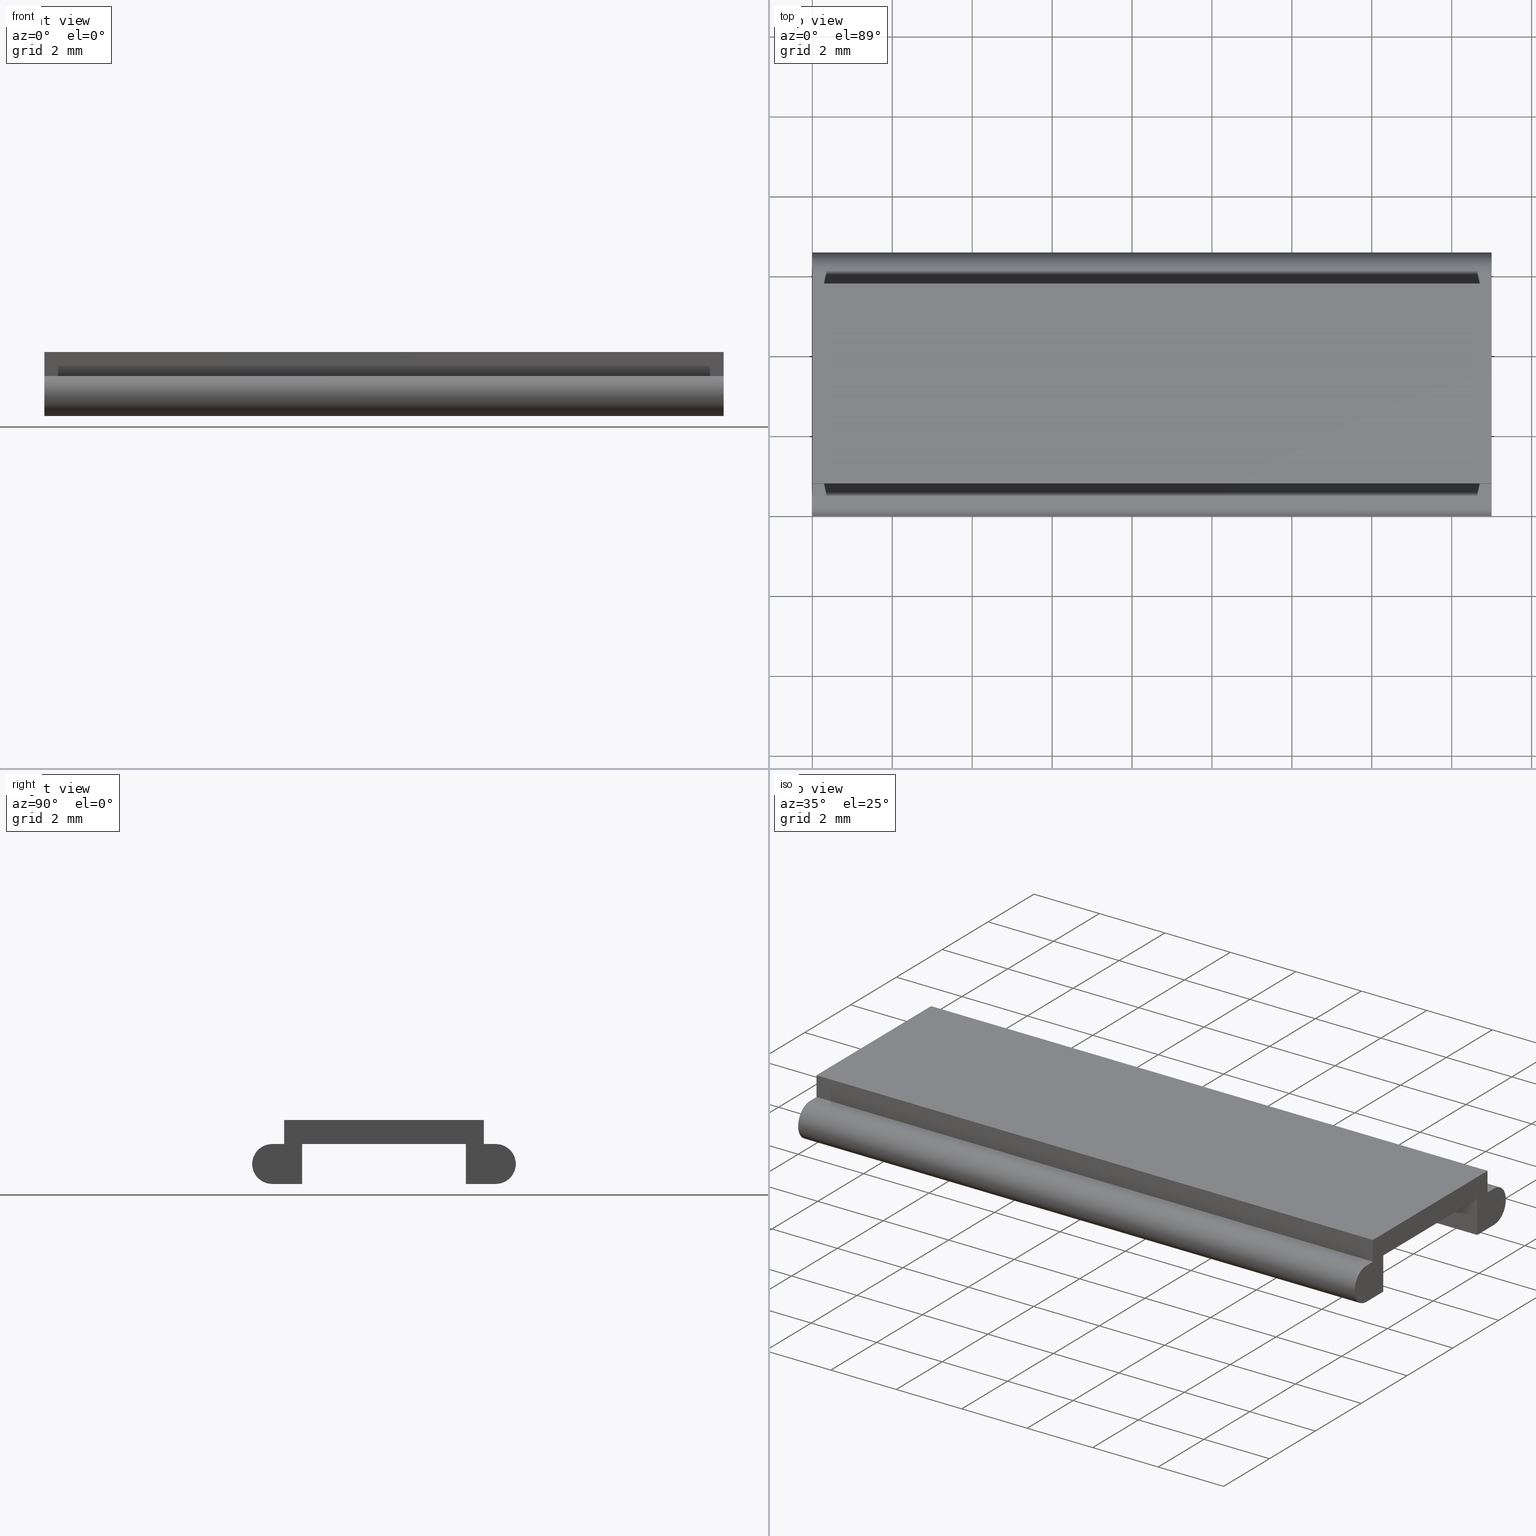
[diagram: canonical four-view strip — front | top / right | iso, engineering-drawing reading convention]
A machine part, canonical four-view strip (front | top / right | iso — engineering-drawing reading convention). The complete STEP part file that produces these views, byte-faithful:
ISO-10303-21;
HEADER;
FILE_DESCRIPTION(('Creo Elements/Direct Modeling STEP Export'),'2;1');
FILE_NAME(
'C:/temp/JobSpoolerServerData/JobServer Files/c83dc3cd-a908-47fd-89f6-1c
d98eb75ae3/work/output/model.stp','2019-04-17T16:14:06',(''),(''),
'Creo Elements/Direct Modeling STEP processor for AP214 (Solid Model)',
'Creo Elements/Direct Modeling 20.1A  29-Sep-2018 (C) Parametric Technol
ogy GmbH','');
FILE_SCHEMA(('AUTOMOTIVE_DESIGN { 1 0 10303 214 1 1 1 1 }'));
ENDSEC;
DATA;
#10=CARTESIAN_POINT('',(381.426447634406,993.884349945384,
0.0999999999999872));
#20=DIRECTION('',(-0.,6.12323399573677E-17,1.));
#30=DIRECTION('',(1.,0.,0.));
#40=AXIS2_PLACEMENT_3D('',#10,#20,#30);
#50=PLANE('',#40);
#60=CARTESIAN_POINT('',(398.426447634406,0.,0.100000000000048));
#70=DIRECTION('',(0.,1.,-6.12323399573677E-17));
#80=VECTOR('',#70,1.);
#90=LINE('',#60,#80);
#100=CARTESIAN_POINT('',(398.426447634406,987.424347545384,
0.0999999999999876));
#110=VERTEX_POINT('',#100);
#120=CARTESIAN_POINT('',(398.426447634406,992.424347545384,
0.0999999999999873));
#130=VERTEX_POINT('',#120);
#140=EDGE_CURVE('',#110,#130,#90,.T.);
#150=ORIENTED_EDGE('',*,*,#140,.T.);
#160=CARTESIAN_POINT('',(0.,987.424347545384,0.0999999999999876));
#170=DIRECTION('',(-1.,0.,0.));
#180=VECTOR('',#170,1.);
#190=LINE('',#160,#180);
#200=CARTESIAN_POINT('',(381.426447634406,987.424347545384,
0.0999999999999876));
#210=VERTEX_POINT('',#200);
#220=EDGE_CURVE('',#110,#210,#190,.T.);
#230=ORIENTED_EDGE('',*,*,#220,.F.);
#240=CARTESIAN_POINT('',(381.426447634406,0.,0.100000000000048));
#250=DIRECTION('',(0.,-1.,6.12323399573677E-17));
#260=VECTOR('',#250,1.);
#270=LINE('',#240,#260);
#280=CARTESIAN_POINT('',(381.426447634406,992.424347545384,
0.0999999999999873));
#290=VERTEX_POINT('',#280);
#300=EDGE_CURVE('',#290,#210,#270,.T.);
#310=ORIENTED_EDGE('',*,*,#300,.T.);
#320=CARTESIAN_POINT('',(0.,992.424347545384,0.0999999999999873));
#330=DIRECTION('',(1.,0.,0.));
#340=VECTOR('',#330,1.);
#350=LINE('',#320,#340);
#360=EDGE_CURVE('',#290,#130,#350,.T.);
#370=ORIENTED_EDGE('',*,*,#360,.F.);
#380=EDGE_LOOP('',(#370,#310,#230,#150));
#390=FACE_OUTER_BOUND('',#380,.T.);
#400=ADVANCED_FACE('',(#390),#50,.T.);
#410=COLOUR_RGB('',0.980392217636108,1.,1.);
#420=FILL_AREA_STYLE_COLOUR('',#410);
#430=FILL_AREA_STYLE('',(#420));
#440=SURFACE_STYLE_FILL_AREA(#430);
#450=SURFACE_SIDE_STYLE('',(#440));
#460=SURFACE_STYLE_USAGE(.BOTH.,#450);
#470=PRESENTATION_STYLE_ASSIGNMENT((#460));
#480=CARTESIAN_POINT('',(381.426447634406,987.424347545384,
-0.300000000000022));
#490=DIRECTION('',(0.,-1.,0.));
#500=DIRECTION('',(0.,0.,1.));
#510=AXIS2_PLACEMENT_3D('',#480,#490,#500);
#520=PLANE('',#510);
#530=CARTESIAN_POINT('',(381.426447634406,987.424347545384,0.));
#540=DIRECTION('',(0.,0.,-1.));
#550=VECTOR('',#540,1.);
#560=LINE('',#530,#550);
#570=CARTESIAN_POINT('',(381.426447634406,987.424347545384,
-0.500000000000021));
#580=VERTEX_POINT('',#570);
#590=EDGE_CURVE('',#210,#580,#560,.T.);
#600=ORIENTED_EDGE('',*,*,#590,.T.);
#610=ORIENTED_EDGE('',*,*,#220,.T.);
#620=CARTESIAN_POINT('',(398.426447634406,987.424347545384,0.));
#630=DIRECTION('',(0.,0.,1.));
#640=VECTOR('',#630,1.);
#650=LINE('',#620,#640);
#660=CARTESIAN_POINT('',(398.426447634406,987.424347545384,
-0.500000000000021));
#670=VERTEX_POINT('',#660);
#680=EDGE_CURVE('',#670,#110,#650,.T.);
#690=ORIENTED_EDGE('',*,*,#680,.T.);
#700=CARTESIAN_POINT('',(0.,987.424347545384,-0.500000000000021));
#710=DIRECTION('',(-1.,0.,0.));
#720=VECTOR('',#710,1.);
#730=LINE('',#700,#720);
#740=EDGE_CURVE('',#670,#580,#730,.T.);
#750=ORIENTED_EDGE('',*,*,#740,.F.);
#760=EDGE_LOOP('',(#750,#690,#610,#600));
#770=FACE_OUTER_BOUND('',#760,.T.);
#780=ADVANCED_FACE('',(#770),#520,.T.);
#790=COLOUR_RGB('',0.980392217636108,1.,1.);
#800=FILL_AREA_STYLE_COLOUR('',#790);
#810=FILL_AREA_STYLE('',(#800));
#820=SURFACE_STYLE_FILL_AREA(#810);
#830=SURFACE_SIDE_STYLE('',(#820));
#840=SURFACE_STYLE_USAGE(.BOTH.,#830);
#850=PRESENTATION_STYLE_ASSIGNMENT((#840));
#860=CARTESIAN_POINT('',(398.426447634406,993.884349945384,
-1.50000000000001));
#870=DIRECTION('',(-0.,-6.12323399573677E-17,-1.));
#880=DIRECTION('',(-1.,0.,0.));
#890=AXIS2_PLACEMENT_3D('',#860,#870,#880);
#900=PLANE('',#890);
#910=CARTESIAN_POINT('',(0.,991.974347545384,-1.50000000000001));
#920=DIRECTION('',(-1.,0.,0.));
#930=VECTOR('',#920,1.);
#940=LINE('',#910,#930);
#950=CARTESIAN_POINT('',(398.426447634406,991.974347545384,
-1.50000000000001));
#960=VERTEX_POINT('',#950);
#970=CARTESIAN_POINT('',(381.426447634406,991.974347545384,
-1.50000000000001));
#980=VERTEX_POINT('',#970);
#990=EDGE_CURVE('',#960,#980,#940,.T.);
#1000=ORIENTED_EDGE('',*,*,#990,.T.);
#1010=CARTESIAN_POINT('',(398.426447634406,0.,-1.49999999999995));
#1020=DIRECTION('',(0.,-1.,6.12323399573677E-17));
#1030=VECTOR('',#1020,1.);
#1040=LINE('',#1010,#1030);
#1050=CARTESIAN_POINT('',(398.426447634406,992.724347545384,
-1.50000000000001));
#1060=VERTEX_POINT('',#1050);
#1070=EDGE_CURVE('',#1060,#960,#1040,.T.);
#1080=ORIENTED_EDGE('',*,*,#1070,.T.);
#1090=CARTESIAN_POINT('',(381.426447634406,992.724347545384,
-1.50000000000002));
#1100=DIRECTION('',(1.,0.,0.));
#1110=VECTOR('',#1100,1.);
#1120=LINE('',#1090,#1110);
#1130=CARTESIAN_POINT('',(381.426447634406,992.724347545384,
-1.50000000000001));
#1140=VERTEX_POINT('',#1130);
#1150=EDGE_CURVE('',#1140,#1060,#1120,.T.);
#1160=ORIENTED_EDGE('',*,*,#1150,.T.);
#1170=CARTESIAN_POINT('',(381.426447634406,0.,-1.49999999999995));
#1180=DIRECTION('',(0.,1.,-6.12323399573677E-17));
#1190=VECTOR('',#1180,1.);
#1200=LINE('',#1170,#1190);
#1210=EDGE_CURVE('',#980,#1140,#1200,.T.);
#1220=ORIENTED_EDGE('',*,*,#1210,.T.);
#1230=EDGE_LOOP('',(#1220,#1160,#1080,#1000));
#1240=FACE_OUTER_BOUND('',#1230,.T.);
#1250=ADVANCED_FACE('',(#1240),#900,.T.);
#1260=COLOUR_RGB('',0.980392217636108,1.,1.);
#1270=FILL_AREA_STYLE_COLOUR('',#1260);
#1280=FILL_AREA_STYLE('',(#1270));
#1290=SURFACE_STYLE_FILL_AREA(#1280);
#1300=SURFACE_SIDE_STYLE('',(#1290));
#1310=SURFACE_STYLE_USAGE(.BOTH.,#1300);
#1320=PRESENTATION_STYLE_ASSIGNMENT((#1310));
#1330=CARTESIAN_POINT('',(381.426447634406,992.624347545384,
-0.500000000000021));
#1340=DIRECTION('',(0.,-0.,1.));
#1350=DIRECTION('',(0.,1.,0.));
#1360=AXIS2_PLACEMENT_3D('',#1330,#1340,#1350);
#1370=PLANE('',#1360);
#1380=CARTESIAN_POINT('',(381.426447634406,0.,-0.500000000000021));
#1390=DIRECTION('',(0.,-1.,0.));
#1400=VECTOR('',#1390,1.);
#1410=LINE('',#1380,#1400);
#1420=CARTESIAN_POINT('',(381.426447634406,992.724347545384,
-0.500000000000021));
#1430=VERTEX_POINT('',#1420);
#1440=CARTESIAN_POINT('',(381.426447634406,992.424347545384,
-0.500000000000021));
#1450=VERTEX_POINT('',#1440);
#1460=EDGE_CURVE('',#1430,#1450,#1410,.T.);
#1470=ORIENTED_EDGE('',*,*,#1460,.T.);
#1480=CARTESIAN_POINT('',(381.426447634406,992.724347545384,
-0.500000000000021));
#1490=DIRECTION('',(1.,0.,0.));
#1500=VECTOR('',#1490,1.);
#1510=LINE('',#1480,#1500);
#1520=CARTESIAN_POINT('',(398.426447634406,992.724347545384,
-0.500000000000021));
#1530=VERTEX_POINT('',#1520);
#1540=EDGE_CURVE('',#1430,#1530,#1510,.T.);
#1550=ORIENTED_EDGE('',*,*,#1540,.F.);
#1560=CARTESIAN_POINT('',(398.426447634406,0.,-0.500000000000021));
#1570=DIRECTION('',(0.,1.,0.));
#1580=VECTOR('',#1570,1.);
#1590=LINE('',#1560,#1580);
#1600=CARTESIAN_POINT('',(398.426447634406,992.424347545384,
-0.500000000000021));
#1610=VERTEX_POINT('',#1600);
#1620=EDGE_CURVE('',#1610,#1530,#1590,.T.);
#1630=ORIENTED_EDGE('',*,*,#1620,.T.);
#1640=CARTESIAN_POINT('',(0.,992.424347545384,-0.500000000000021));
#1650=DIRECTION('',(-1.,0.,0.));
#1660=VECTOR('',#1650,1.);
#1670=LINE('',#1640,#1660);
#1680=EDGE_CURVE('',#1610,#1450,#1670,.T.);
#1690=ORIENTED_EDGE('',*,*,#1680,.F.);
#1700=EDGE_LOOP('',(#1690,#1630,#1550,#1470));
#1710=FACE_OUTER_BOUND('',#1700,.T.);
#1720=ADVANCED_FACE('',(#1710),#1370,.T.);
#1730=COLOUR_RGB('',0.980392217636108,1.,1.);
#1740=FILL_AREA_STYLE_COLOUR('',#1730);
#1750=FILL_AREA_STYLE('',(#1740));
#1760=SURFACE_STYLE_FILL_AREA(#1750);
#1770=SURFACE_SIDE_STYLE('',(#1760));
#1780=SURFACE_STYLE_USAGE(.BOTH.,#1770);
#1790=PRESENTATION_STYLE_ASSIGNMENT((#1780));
#1800=CARTESIAN_POINT('',(381.426447634406,991.974347545384,
-1.00000000000002));
#1810=DIRECTION('',(0.,-1.,0.));
#1820=DIRECTION('',(0.,0.,1.));
#1830=AXIS2_PLACEMENT_3D('',#1800,#1810,#1820);
#1840=PLANE('',#1830);
#1850=CARTESIAN_POINT('',(381.426447634406,991.974347545384,0.));
#1860=DIRECTION('',(0.,0.,-1.));
#1870=VECTOR('',#1860,1.);
#1880=LINE('',#1850,#1870);
#1890=CARTESIAN_POINT('',(381.426447634406,991.974347545384,
-0.500000000000021));
#1900=VERTEX_POINT('',#1890);
#1910=EDGE_CURVE('',#1900,#980,#1880,.T.);
#1920=ORIENTED_EDGE('',*,*,#1910,.T.);
#1930=CARTESIAN_POINT('',(0.,991.974347545384,-0.500000000000021));
#1940=DIRECTION('',(-1.,0.,0.));
#1950=VECTOR('',#1940,1.);
#1960=LINE('',#1930,#1950);
#1970=CARTESIAN_POINT('',(398.426447634406,991.974347545384,
-0.500000000000021));
#1980=VERTEX_POINT('',#1970);
#1990=EDGE_CURVE('',#1980,#1900,#1960,.T.);
#2000=ORIENTED_EDGE('',*,*,#1990,.T.);
#2010=CARTESIAN_POINT('',(398.426447634406,991.974347545384,0.));
#2020=DIRECTION('',(0.,0.,1.));
#2030=VECTOR('',#2020,1.);
#2040=LINE('',#2010,#2030);
#2050=EDGE_CURVE('',#960,#1980,#2040,.T.);
#2060=ORIENTED_EDGE('',*,*,#2050,.T.);
#2070=ORIENTED_EDGE('',*,*,#990,.F.);
#2080=EDGE_LOOP('',(#2070,#2060,#2000,#1920));
#2090=FACE_OUTER_BOUND('',#2080,.T.);
#2100=ADVANCED_FACE('',(#2090),#1840,.T.);
#2110=COLOUR_RGB('',0.980392217636108,1.,1.);
#2120=FILL_AREA_STYLE_COLOUR('',#2110);
#2130=FILL_AREA_STYLE('',(#2120));
#2140=SURFACE_STYLE_FILL_AREA(#2130);
#2150=SURFACE_SIDE_STYLE('',(#2140));
#2160=SURFACE_STYLE_USAGE(.BOTH.,#2150);
#2170=PRESENTATION_STYLE_ASSIGNMENT((#2160));
#2180=CARTESIAN_POINT('',(398.426447634406,993.884349945384,
-1.12500000000001));
#2190=DIRECTION('',(1.,0.,0.));
#2200=DIRECTION('',(0.,-6.12323399573677E-17,-1.));
#2210=AXIS2_PLACEMENT_3D('',#2180,#2190,#2200);
#2220=PLANE('',#2210);
#2230=ORIENTED_EDGE('',*,*,#680,.F.);
#2240=ORIENTED_EDGE('',*,*,#140,.F.);
#2250=CARTESIAN_POINT('',(398.426447634406,992.424347545384,0.));
#2260=DIRECTION('',(0.,0.,-1.));
#2270=VECTOR('',#2260,1.);
#2280=LINE('',#2250,#2270);
#2290=EDGE_CURVE('',#130,#1610,#2280,.T.);
#2300=ORIENTED_EDGE('',*,*,#2290,.F.);
#2310=ORIENTED_EDGE('',*,*,#1620,.F.);
#2320=CARTESIAN_POINT('',(398.426447634406,992.724347545384,
-1.00000000000002));
#2330=DIRECTION('',(1.,0.,0.));
#2340=DIRECTION('',(0.,1.,0.));
#2350=AXIS2_PLACEMENT_3D('',#2320,#2330,#2340);
#2360=CIRCLE('',#2350,0.5);
#2370=EDGE_CURVE('',#1060,#1530,#2360,.T.);
#2380=ORIENTED_EDGE('',*,*,#2370,.T.);
#2390=ORIENTED_EDGE('',*,*,#1070,.F.);
#2400=ORIENTED_EDGE('',*,*,#2050,.F.);
#2410=CARTESIAN_POINT('',(398.426447634406,0.,-0.500000000000021));
#2420=DIRECTION('',(0.,-1.,0.));
#2430=VECTOR('',#2420,1.);
#2440=LINE('',#2410,#2430);
#2450=CARTESIAN_POINT('',(398.426447634406,987.874347545384,
-0.500000000000021));
#2460=VERTEX_POINT('',#2450);
#2470=EDGE_CURVE('',#1980,#2460,#2440,.T.);
#2480=ORIENTED_EDGE('',*,*,#2470,.F.);
#2490=CARTESIAN_POINT('',(398.426447634406,987.874347545384,0.));
#2500=DIRECTION('',(0.,0.,-1.));
#2510=VECTOR('',#2500,1.);
#2520=LINE('',#2490,#2510);
#2530=CARTESIAN_POINT('',(398.426447634406,987.874347545384,
-1.50000000000001));
#2540=VERTEX_POINT('',#2530);
#2550=EDGE_CURVE('',#2460,#2540,#2520,.T.);
#2560=ORIENTED_EDGE('',*,*,#2550,.F.);
#2570=CARTESIAN_POINT('',(398.426447634406,0.,-1.49999999999995));
#2580=DIRECTION('',(0.,-1.,6.12323399573677E-17));
#2590=VECTOR('',#2580,1.);
#2600=LINE('',#2570,#2590);
#2610=CARTESIAN_POINT('',(398.426447634406,987.124347545384,
-1.50000000000002));
#2620=VERTEX_POINT('',#2610);
#2630=EDGE_CURVE('',#2540,#2620,#2600,.T.);
#2640=ORIENTED_EDGE('',*,*,#2630,.F.);
#2650=CARTESIAN_POINT('',(398.426447634406,987.124347545384,
-1.00000000000002));
#2660=DIRECTION('',(1.,0.,0.));
#2670=DIRECTION('',(0.,1.,0.));
#2680=AXIS2_PLACEMENT_3D('',#2650,#2660,#2670);
#2690=CIRCLE('',#2680,0.5);
#2700=CARTESIAN_POINT('',(398.426447634406,987.124347545384,
-0.500000000000021));
#2710=VERTEX_POINT('',#2700);
#2720=EDGE_CURVE('',#2710,#2620,#2690,.T.);
#2730=ORIENTED_EDGE('',*,*,#2720,.T.);
#2740=CARTESIAN_POINT('',(398.426447634406,0.,-0.500000000000021));
#2750=DIRECTION('',(0.,1.,0.));
#2760=VECTOR('',#2750,1.);
#2770=LINE('',#2740,#2760);
#2780=EDGE_CURVE('',#2710,#670,#2770,.T.);
#2790=ORIENTED_EDGE('',*,*,#2780,.F.);
#2800=EDGE_LOOP('',(#2790,#2730,#2640,#2560,#2480,#2400,#2390,#2380,
#2310,#2300,#2240,#2230));
#2810=FACE_OUTER_BOUND('',#2800,.T.);
#2820=ADVANCED_FACE('',(#2810),#2220,.T.);
#2830=COLOUR_RGB('',0.980392217636108,1.,1.);
#2840=FILL_AREA_STYLE_COLOUR('',#2830);
#2850=FILL_AREA_STYLE('',(#2840));
#2860=SURFACE_STYLE_FILL_AREA(#2850);
#2870=SURFACE_SIDE_STYLE('',(#2860));
#2880=SURFACE_STYLE_USAGE(.BOTH.,#2870);
#2890=PRESENTATION_STYLE_ASSIGNMENT((#2880));
#2900=CARTESIAN_POINT('',(381.426447634406,991.674347545384,
-0.500000000000021));
#2910=DIRECTION('',(-0.,-0.,-1.));
#2920=DIRECTION('',(0.,-1.,0.));
#2930=AXIS2_PLACEMENT_3D('',#2900,#2910,#2920);
#2940=PLANE('',#2930);
#2950=CARTESIAN_POINT('',(0.,987.874347545384,-0.500000000000021));
#2960=DIRECTION('',(-1.,0.,0.));
#2970=VECTOR('',#2960,1.);
#2980=LINE('',#2950,#2970);
#2990=CARTESIAN_POINT('',(381.426447634406,987.874347545384,
-0.500000000000021));
#3000=VERTEX_POINT('',#2990);
#3010=EDGE_CURVE('',#2460,#3000,#2980,.T.);
#3020=ORIENTED_EDGE('',*,*,#3010,.T.);
#3030=ORIENTED_EDGE('',*,*,#2470,.T.);
#3040=ORIENTED_EDGE('',*,*,#1990,.F.);
#3050=CARTESIAN_POINT('',(381.426447634406,0.,-0.500000000000021));
#3060=DIRECTION('',(0.,1.,0.));
#3070=VECTOR('',#3060,1.);
#3080=LINE('',#3050,#3070);
#3090=EDGE_CURVE('',#3000,#1900,#3080,.T.);
#3100=ORIENTED_EDGE('',*,*,#3090,.T.);
#3110=EDGE_LOOP('',(#3100,#3040,#3030,#3020));
#3120=FACE_OUTER_BOUND('',#3110,.T.);
#3130=ADVANCED_FACE('',(#3120),#2940,.T.);
#3140=COLOUR_RGB('',0.980392217636108,1.,1.);
#3150=FILL_AREA_STYLE_COLOUR('',#3140);
#3160=FILL_AREA_STYLE('',(#3150));
#3170=SURFACE_STYLE_FILL_AREA(#3160);
#3180=SURFACE_SIDE_STYLE('',(#3170));
#3190=SURFACE_STYLE_USAGE(.BOTH.,#3180);
#3200=PRESENTATION_STYLE_ASSIGNMENT((#3190));
#3210=CARTESIAN_POINT('',(381.426447634406,993.884349945384,
-1.50000000000001));
#3220=DIRECTION('',(-1.,0.,0.));
#3230=DIRECTION('',(0.,6.12323399573677E-17,1.));
#3240=AXIS2_PLACEMENT_3D('',#3210,#3220,#3230);
#3250=PLANE('',#3240);
#3260=CARTESIAN_POINT('',(381.426447634406,0.,-0.500000000000021));
#3270=DIRECTION('',(0.,-1.,0.));
#3280=VECTOR('',#3270,1.);
#3290=LINE('',#3260,#3280);
#3300=CARTESIAN_POINT('',(381.426447634406,987.124347545384,
-0.500000000000021));
#3310=VERTEX_POINT('',#3300);
#3320=EDGE_CURVE('',#580,#3310,#3290,.T.);
#3330=ORIENTED_EDGE('',*,*,#3320,.F.);
#3340=CARTESIAN_POINT('',(381.426447634406,987.124347545384,
-1.00000000000002));
#3350=DIRECTION('',(1.,0.,0.));
#3360=DIRECTION('',(0.,1.,0.));
#3370=AXIS2_PLACEMENT_3D('',#3340,#3350,#3360);
#3380=CIRCLE('',#3370,0.5);
#3390=CARTESIAN_POINT('',(381.426447634406,987.124347545384,
-1.50000000000002));
#3400=VERTEX_POINT('',#3390);
#3410=EDGE_CURVE('',#3310,#3400,#3380,.T.);
#3420=ORIENTED_EDGE('',*,*,#3410,.F.);
#3430=CARTESIAN_POINT('',(381.426447634406,0.,-1.49999999999995));
#3440=DIRECTION('',(0.,1.,-6.12323399573677E-17));
#3450=VECTOR('',#3440,1.);
#3460=LINE('',#3430,#3450);
#3470=CARTESIAN_POINT('',(381.426447634406,987.874347545384,
-1.50000000000001));
#3480=VERTEX_POINT('',#3470);
#3490=EDGE_CURVE('',#3400,#3480,#3460,.T.);
#3500=ORIENTED_EDGE('',*,*,#3490,.F.);
#3510=CARTESIAN_POINT('',(381.426447634406,987.874347545384,0.));
#3520=DIRECTION('',(0.,0.,1.));
#3530=VECTOR('',#3520,1.);
#3540=LINE('',#3510,#3530);
#3550=EDGE_CURVE('',#3480,#3000,#3540,.T.);
#3560=ORIENTED_EDGE('',*,*,#3550,.F.);
#3570=ORIENTED_EDGE('',*,*,#3090,.F.);
#3580=ORIENTED_EDGE('',*,*,#1910,.F.);
#3590=ORIENTED_EDGE('',*,*,#1210,.F.);
#3600=CARTESIAN_POINT('',(381.426447634406,992.724347545384,
-1.00000000000002));
#3610=DIRECTION('',(1.,0.,0.));
#3620=DIRECTION('',(0.,1.,0.));
#3630=AXIS2_PLACEMENT_3D('',#3600,#3610,#3620);
#3640=CIRCLE('',#3630,0.5);
#3650=EDGE_CURVE('',#1140,#1430,#3640,.T.);
#3660=ORIENTED_EDGE('',*,*,#3650,.F.);
#3670=ORIENTED_EDGE('',*,*,#1460,.F.);
#3680=CARTESIAN_POINT('',(381.426447634406,992.424347545384,0.));
#3690=DIRECTION('',(0.,0.,1.));
#3700=VECTOR('',#3690,1.);
#3710=LINE('',#3680,#3700);
#3720=EDGE_CURVE('',#1450,#290,#3710,.T.);
#3730=ORIENTED_EDGE('',*,*,#3720,.F.);
#3740=ORIENTED_EDGE('',*,*,#300,.F.);
#3750=ORIENTED_EDGE('',*,*,#590,.F.);
#3760=EDGE_LOOP('',(#3750,#3740,#3730,#3670,#3660,#3590,#3580,#3570,
#3560,#3500,#3420,#3330));
#3770=FACE_OUTER_BOUND('',#3760,.T.);
#3780=ADVANCED_FACE('',(#3770),#3250,.T.);
#3790=COLOUR_RGB('',0.980392217636108,1.,1.);
#3800=FILL_AREA_STYLE_COLOUR('',#3790);
#3810=FILL_AREA_STYLE('',(#3800));
#3820=SURFACE_STYLE_FILL_AREA(#3810);
#3830=SURFACE_SIDE_STYLE('',(#3820));
#3840=SURFACE_STYLE_USAGE(.BOTH.,#3830);
#3850=PRESENTATION_STYLE_ASSIGNMENT((#3840));
#3860=CARTESIAN_POINT('',(381.426447634406,987.874347545384,
-0.800000000000022));
#3870=DIRECTION('',(0.,1.,0.));
#3880=DIRECTION('',(0.,0.,-1.));
#3890=AXIS2_PLACEMENT_3D('',#3860,#3870,#3880);
#3900=PLANE('',#3890);
#3910=ORIENTED_EDGE('',*,*,#3550,.T.);
#3920=CARTESIAN_POINT('',(0.,987.874347545384,-1.50000000000001));
#3930=DIRECTION('',(-1.,0.,0.));
#3940=VECTOR('',#3930,1.);
#3950=LINE('',#3920,#3940);
#3960=EDGE_CURVE('',#2540,#3480,#3950,.T.);
#3970=ORIENTED_EDGE('',*,*,#3960,.T.);
#3980=ORIENTED_EDGE('',*,*,#2550,.T.);
#3990=ORIENTED_EDGE('',*,*,#3010,.F.);
#4000=EDGE_LOOP('',(#3990,#3980,#3970,#3910));
#4010=FACE_OUTER_BOUND('',#4000,.T.);
#4020=ADVANCED_FACE('',(#4010),#3900,.T.);
#4030=COLOUR_RGB('',0.980392217636108,1.,1.);
#4040=FILL_AREA_STYLE_COLOUR('',#4030);
#4050=FILL_AREA_STYLE('',(#4040));
#4060=SURFACE_STYLE_FILL_AREA(#4050);
#4070=SURFACE_SIDE_STYLE('',(#4060));
#4080=SURFACE_STYLE_USAGE(.BOTH.,#4070);
#4090=PRESENTATION_STYLE_ASSIGNMENT((#4080));
#4100=CARTESIAN_POINT('',(475.426447634406,992.424347545384,
-1.66000240000002));
#4110=DIRECTION('',(-0.,1.,0.));
#4120=DIRECTION('',(1.,0.,0.));
#4130=AXIS2_PLACEMENT_3D('',#4100,#4110,#4120);
#4140=PLANE('',#4130);
#4150=ORIENTED_EDGE('',*,*,#1680,.T.);
#4160=ORIENTED_EDGE('',*,*,#2290,.T.);
#4170=ORIENTED_EDGE('',*,*,#360,.T.);
#4180=ORIENTED_EDGE('',*,*,#3720,.T.);
#4190=EDGE_LOOP('',(#4180,#4170,#4160,#4150));
#4200=FACE_OUTER_BOUND('',#4190,.T.);
#4210=ADVANCED_FACE('',(#4200),#4140,.T.);
#4220=COLOUR_RGB('',0.980392217636108,1.,1.);
#4230=FILL_AREA_STYLE_COLOUR('',#4220);
#4240=FILL_AREA_STYLE('',(#4230));
#4250=SURFACE_STYLE_FILL_AREA(#4240);
#4260=SURFACE_SIDE_STYLE('',(#4250));
#4270=SURFACE_STYLE_USAGE(.BOTH.,#4260);
#4280=PRESENTATION_STYLE_ASSIGNMENT((#4270));
#4290=ORIENTED_EDGE('',*,*,#3490,.T.);
#4300=CARTESIAN_POINT('',(381.426447634406,987.124347545384,
-1.50000000000002));
#4310=DIRECTION('',(1.,0.,0.));
#4320=VECTOR('',#4310,1.);
#4330=LINE('',#4300,#4320);
#4340=EDGE_CURVE('',#3400,#2620,#4330,.T.);
#4350=ORIENTED_EDGE('',*,*,#4340,.F.);
#4360=ORIENTED_EDGE('',*,*,#2630,.T.);
#4370=ORIENTED_EDGE('',*,*,#3960,.F.);
#4380=EDGE_LOOP('',(#4370,#4360,#4350,#4290));
#4390=FACE_OUTER_BOUND('',#4380,.T.);
#4400=ADVANCED_FACE('',(#4390),#900,.T.);
#4410=COLOUR_RGB('',0.980392217636108,1.,1.);
#4420=FILL_AREA_STYLE_COLOUR('',#4410);
#4430=FILL_AREA_STYLE('',(#4420));
#4440=SURFACE_STYLE_FILL_AREA(#4430);
#4450=SURFACE_SIDE_STYLE('',(#4440));
#4460=SURFACE_STYLE_USAGE(.BOTH.,#4450);
#4470=PRESENTATION_STYLE_ASSIGNMENT((#4460));
#4480=CARTESIAN_POINT('',(381.426447634406,987.124347545384,
-1.00000000000002));
#4490=DIRECTION('',(1.,0.,0.));
#4500=DIRECTION('',(0.,1.,0.));
#4510=AXIS2_PLACEMENT_3D('',#4480,#4490,#4500);
#4520=CYLINDRICAL_SURFACE('',#4510,0.5);
#4530=ORIENTED_EDGE('',*,*,#4340,.T.);
#4540=ORIENTED_EDGE('',*,*,#3410,.T.);
#4550=CARTESIAN_POINT('',(381.426447634406,987.124347545384,
-0.500000000000021));
#4560=DIRECTION('',(1.,0.,0.));
#4570=VECTOR('',#4560,1.);
#4580=LINE('',#4550,#4570);
#4590=EDGE_CURVE('',#3310,#2710,#4580,.T.);
#4600=ORIENTED_EDGE('',*,*,#4590,.F.);
#4610=ORIENTED_EDGE('',*,*,#2720,.F.);
#4620=EDGE_LOOP('',(#4610,#4600,#4540,#4530));
#4630=FACE_OUTER_BOUND('',#4620,.T.);
#4640=ADVANCED_FACE('',(#4630),#4520,.T.);
#4650=COLOUR_RGB('',0.980392217636108,1.,1.);
#4660=FILL_AREA_STYLE_COLOUR('',#4650);
#4670=FILL_AREA_STYLE('',(#4660));
#4680=SURFACE_STYLE_FILL_AREA(#4670);
#4690=SURFACE_SIDE_STYLE('',(#4680));
#4700=SURFACE_STYLE_USAGE(.BOTH.,#4690);
#4710=PRESENTATION_STYLE_ASSIGNMENT((#4700));
#4720=CARTESIAN_POINT('',(381.426447634406,987.124347545384,
-0.500000000000021));
#4730=DIRECTION('',(0.,-0.,1.));
#4740=DIRECTION('',(0.,1.,0.));
#4750=AXIS2_PLACEMENT_3D('',#4720,#4730,#4740);
#4760=PLANE('',#4750);
#4770=ORIENTED_EDGE('',*,*,#740,.T.);
#4780=ORIENTED_EDGE('',*,*,#2780,.T.);
#4790=ORIENTED_EDGE('',*,*,#4590,.T.);
#4800=ORIENTED_EDGE('',*,*,#3320,.T.);
#4810=EDGE_LOOP('',(#4800,#4790,#4780,#4770));
#4820=FACE_OUTER_BOUND('',#4810,.T.);
#4830=ADVANCED_FACE('',(#4820),#4760,.T.);
#4840=COLOUR_RGB('',0.980392217636108,1.,1.);
#4850=FILL_AREA_STYLE_COLOUR('',#4840);
#4860=FILL_AREA_STYLE('',(#4850));
#4870=SURFACE_STYLE_FILL_AREA(#4860);
#4880=SURFACE_SIDE_STYLE('',(#4870));
#4890=SURFACE_STYLE_USAGE(.BOTH.,#4880);
#4900=PRESENTATION_STYLE_ASSIGNMENT((#4890));
#4910=CARTESIAN_POINT('',(381.426447634406,992.724347545384,
-1.00000000000002));
#4920=DIRECTION('',(1.,0.,0.));
#4930=DIRECTION('',(0.,1.,0.));
#4940=AXIS2_PLACEMENT_3D('',#4910,#4920,#4930);
#4950=CYLINDRICAL_SURFACE('',#4940,0.5);
#4960=ORIENTED_EDGE('',*,*,#1540,.T.);
#4970=ORIENTED_EDGE('',*,*,#3650,.T.);
#4980=ORIENTED_EDGE('',*,*,#1150,.F.);
#4990=ORIENTED_EDGE('',*,*,#2370,.F.);
#5000=EDGE_LOOP('',(#4990,#4980,#4970,#4960));
#5010=FACE_OUTER_BOUND('',#5000,.T.);
#5020=ADVANCED_FACE('',(#5010),#4950,.T.);
#5030=COLOUR_RGB('',0.980392217636108,1.,1.);
#5040=FILL_AREA_STYLE_COLOUR('',#5030);
#5050=FILL_AREA_STYLE('',(#5040));
#5060=SURFACE_STYLE_FILL_AREA(#5050);
#5070=SURFACE_SIDE_STYLE('',(#5060));
#5080=SURFACE_STYLE_USAGE(.BOTH.,#5070);
#5090=PRESENTATION_STYLE_ASSIGNMENT((#5080));
#5100=CLOSED_SHELL('',(#400,#780,#1250,#1720,#2100,#2820,#3130,#3780,
#4020,#4210,#4400,#4640,#4830,#5020));
#5110=MANIFOLD_SOLID_BREP('',#5100);
#5120=CARTESIAN_POINT('',(0.,0.,0.));
#5130=DIRECTION('',(0.,0.,1.));
#5140=DIRECTION('',(1.,0.,0.));
#5150=AXIS2_PLACEMENT_3D('',#5120,#5130,#5140);
#5160=APPLICATION_CONTEXT(' ');
#5170=APPLICATION_PROTOCOL_DEFINITION(' ','automotive_design',1998,#5160
);
#5180=PRODUCT_CONTEXT('',#5160,'mechanical');
#5190=PRODUCT_DEFINITION_CONTEXT('part definition',#5160,'design');
#5200=PRODUCT('ZBN_18_UNBEDRUCKT-select','ZBN_18_UNBEDRUCKT-select','',(
#5180));
#5210=PRODUCT_RELATED_PRODUCT_CATEGORY('part',' ',(#5200));
#5220=PRODUCT_DEFINITION_FORMATION_WITH_SPECIFIED_SOURCE('','',#5200,
.BOUGHT.);
#5230=PRODUCT_DEFINITION('',' ',#5220,#5190);
#5240=PRODUCT_DEFINITION_SHAPE('','',#5230);
#5250=DIMENSIONAL_EXPONENTS(1.,0.,0.,0.,0.,0.,0.);
#5260=DIMENSIONAL_EXPONENTS(0.,0.,0.,0.,0.,0.,0.);
#5270=DIMENSIONAL_EXPONENTS(0.,0.,0.,0.,0.,0.,0.);
#5280=(LENGTH_UNIT() NAMED_UNIT(*) SI_UNIT(.MILLI.,.METRE.));
#5290=(NAMED_UNIT(*) PLANE_ANGLE_UNIT() SI_UNIT($,.RADIAN.));
#5300=(NAMED_UNIT(*) SI_UNIT($,.STERADIAN.) SOLID_ANGLE_UNIT());
#5310=(GEOMETRIC_REPRESENTATION_CONTEXT(3) 
GLOBAL_UNCERTAINTY_ASSIGNED_CONTEXT((#5320)) 
GLOBAL_UNIT_ASSIGNED_CONTEXT((#5280,#5290,#5300)) REPRESENTATION_CONTEXT
('',''));
#5320=UNCERTAINTY_MEASURE_WITH_UNIT(LENGTH_MEASURE(1.E-6),#5280,
'distance_accuracy_value','maximum gap value');
#5330=ADVANCED_BREP_SHAPE_REPRESENTATION('',(#5150,#5110),#5310);
#5340=SHAPE_DEFINITION_REPRESENTATION(#5240,#5330);
#5350=COLOUR_RGB('',0.980392217636108,1.,1.);
#5360=FILL_AREA_STYLE_COLOUR('',#5350);
#5370=FILL_AREA_STYLE('',(#5360));
#5380=SURFACE_STYLE_FILL_AREA(#5370);
#5390=SURFACE_SIDE_STYLE('',(#5380));
#5400=SURFACE_STYLE_USAGE(.BOTH.,#5390);
#5410=PRESENTATION_STYLE_ASSIGNMENT((#5400));
#5420=STYLED_ITEM('',(#5410),#5110);
#5430=OVER_RIDING_STYLED_ITEM('',(#470),#400,#5420);
#5440=OVER_RIDING_STYLED_ITEM('',(#850),#780,#5420);
#5450=OVER_RIDING_STYLED_ITEM('',(#1320),#1250,#5420);
#5460=OVER_RIDING_STYLED_ITEM('',(#1790),#1720,#5420);
#5470=OVER_RIDING_STYLED_ITEM('',(#2170),#2100,#5420);
#5480=OVER_RIDING_STYLED_ITEM('',(#2890),#2820,#5420);
#5490=OVER_RIDING_STYLED_ITEM('',(#3200),#3130,#5420);
#5500=OVER_RIDING_STYLED_ITEM('',(#3850),#3780,#5420);
#5510=OVER_RIDING_STYLED_ITEM('',(#4090),#4020,#5420);
#5520=OVER_RIDING_STYLED_ITEM('',(#4280),#4210,#5420);
#5530=OVER_RIDING_STYLED_ITEM('',(#4470),#4400,#5420);
#5540=OVER_RIDING_STYLED_ITEM('',(#4710),#4640,#5420);
#5550=OVER_RIDING_STYLED_ITEM('',(#4900),#4830,#5420);
#5560=OVER_RIDING_STYLED_ITEM('',(#5090),#5020,#5420);
#5570=DRAUGHTING_MODEL('',(#5420,#5430,#5440,#5450,#5460,#5470,#5480,
#5490,#5500,#5510,#5520,#5530,#5540,#5550,#5560),#5310);
#5580=CARTESIAN_POINT('',(398.426447634406,993.224347545384,
1.49999999999974));
#5590=DIRECTION('',(0.,0.,1.));
#5600=DIRECTION('',(-1.,0.,0.));
#5610=AXIS2_PLACEMENT_3D('',#5580,#5590,#5600);
#5620=ITEM_DEFINED_TRANSFORMATION('ZBN_18_UNBEDRUCKT-select','',#5150,
#5610);
#5630=APPLICATION_CONTEXT(' ');
#5640=APPLICATION_PROTOCOL_DEFINITION(' ','automotive_design',1998,#5630
);
#5650=PRODUCT_CONTEXT('',#5630,'mechanical');
#5660=PRODUCT_DEFINITION_CONTEXT('part definition',#5630,'design');
#5670=PRODUCT('ZBN_18_UNBEDRUCKT-select','ZBN_18_UNBEDRUCKT-select','',(
#5650));
#5680=PRODUCT_RELATED_PRODUCT_CATEGORY('part',' ',(#5670));
#5690=PRODUCT_DEFINITION_FORMATION_WITH_SPECIFIED_SOURCE('','',#5670,
.BOUGHT.);
#5700=PRODUCT_DEFINITION('',' ',#5690,#5660);
#5710=PRODUCT_DEFINITION_SHAPE('','',#5700);
#5720=DIMENSIONAL_EXPONENTS(1.,0.,0.,0.,0.,0.,0.);
#5730=DIMENSIONAL_EXPONENTS(0.,0.,0.,0.,0.,0.,0.);
#5740=DIMENSIONAL_EXPONENTS(0.,0.,0.,0.,0.,0.,0.);
#5750=(LENGTH_UNIT() NAMED_UNIT(*) SI_UNIT(.MILLI.,.METRE.));
#5760=(NAMED_UNIT(*) PLANE_ANGLE_UNIT() SI_UNIT($,.RADIAN.));
#5770=(NAMED_UNIT(*) SI_UNIT($,.STERADIAN.) SOLID_ANGLE_UNIT());
#5780=(GEOMETRIC_REPRESENTATION_CONTEXT(3) 
GLOBAL_UNCERTAINTY_ASSIGNED_CONTEXT((#5790)) 
GLOBAL_UNIT_ASSIGNED_CONTEXT((#5750,#5760,#5770)) REPRESENTATION_CONTEXT
('',''));
#5790=UNCERTAINTY_MEASURE_WITH_UNIT(LENGTH_MEASURE(1.E-6),#5750,
'distance_accuracy_value','maximum gap value');
#5800=SHAPE_REPRESENTATION('',(#5150,#5610),#5780);
#5810=SHAPE_DEFINITION_REPRESENTATION(#5710,#5800);
#5820=(REPRESENTATION_RELATIONSHIP('','',#5330,#5800) 
REPRESENTATION_RELATIONSHIP_WITH_TRANSFORMATION(#5620) 
SHAPE_REPRESENTATION_RELATIONSHIP());
#5830=NEXT_ASSEMBLY_USAGE_OCCURRENCE('1','','ZBN_18_UNBEDRUCKT-select',
#5700,#5230,'');
#5840=PRODUCT_DEFINITION_SHAPE('','',#5830);
#5850=CONTEXT_DEPENDENT_SHAPE_REPRESENTATION(#5820,#5840);
ENDSEC;
END-ISO-10303-21;
